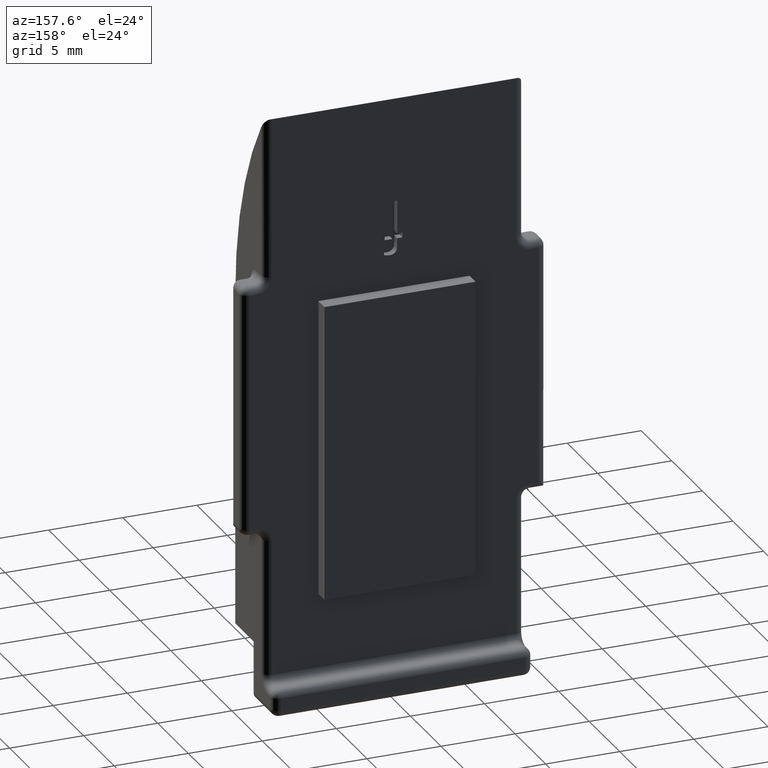
[diagram: clean part render]
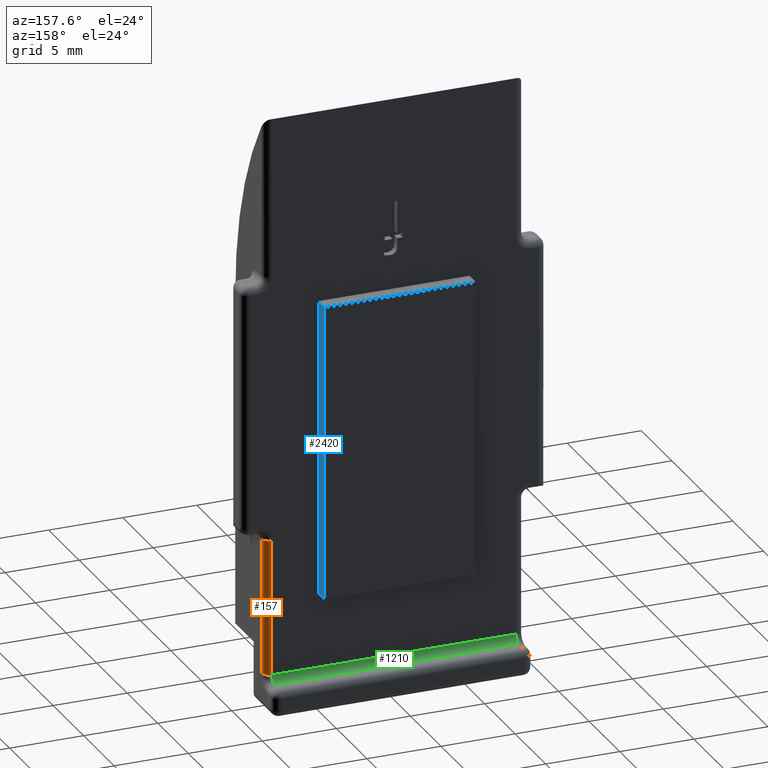
[diagram: same view with three faces highlighted in distinct colors, each labeled with its STEP entity id]
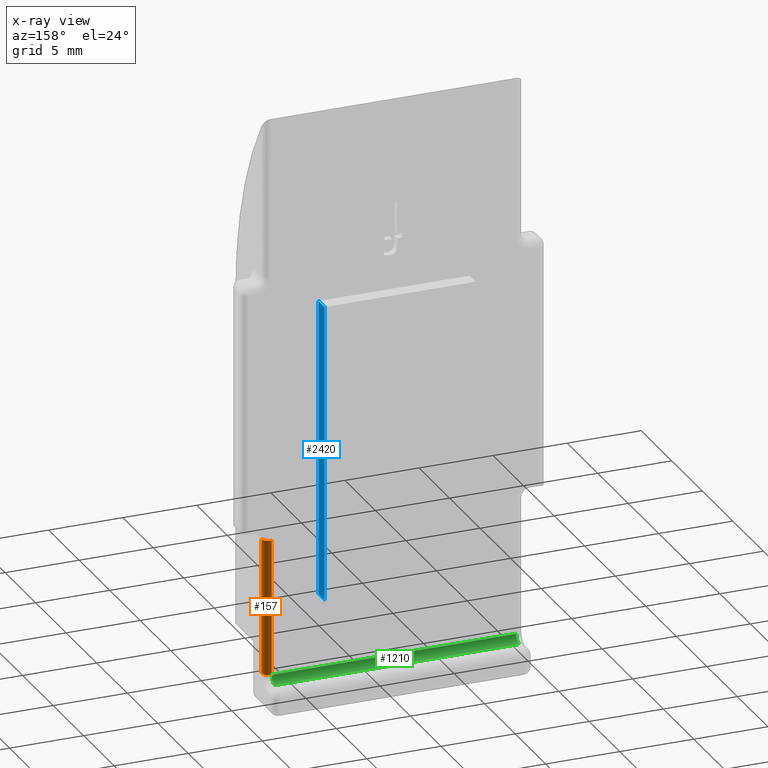
[diagram: x-ray of the same camera — body ghosted, the three highlighted faces saturated]
A machine part, auxiliary view with three faces highlighted in distinct colors.
The next image is the same camera in x-ray (body ghosted, the three faces saturated) — at least one of them is partly hidden behind the body in this view.
Their STEP definitions:

[orange] entity #157 — the highlighted cylindrical surface (edge-blend (fillet) strip) has radius 0.5 mm, axis along (0, -0, -1).
#157 = ADVANCED_FACE ( 'NONE', ( #2794 ), #2586, .T. ) ;
#438 = VERTEX_POINT ( 'NONE', #2970 ) ;
#469 = LINE ( 'NONE', #2614, #600 ) ;
#536 = EDGE_CURVE ( 'NONE', #438, #683, #603, .T. ) ;
#575 = EDGE_CURVE ( 'NONE', #926, #2252, #469, .T. ) ;
#600 = VECTOR ( 'NONE', #2616, 1000.000000000000000 ) ;
#603 = LINE ( 'NONE', #2684, #681 ) ;
#617 = CIRCLE ( 'NONE', #2575, 0.5000000000000004400 ) ;
#681 = VECTOR ( 'NONE', #2651, 1000.000000000000000 ) ;
#683 = VERTEX_POINT ( 'NONE', #2521 ) ;
#926 = VERTEX_POINT ( 'NONE', #2037 ) ;
#1314 = AXIS2_PLACEMENT_3D ( 'NONE', #2668, #2606, #2459 ) ;
#1689 = AXIS2_PLACEMENT_3D ( 'NONE', #1982, #1890, #1831 ) ;
#1759 = EDGE_LOOP ( 'NONE', ( #2603, #2636, #2779, #2827 ) ) ;
#1831 = DIRECTION ( 'NONE',  ( 0.0000000000000000000, 1.000000000000000000, -4.511634527898061500E-017 ) ) ;
#1890 = DIRECTION ( 'NONE',  ( 0.0000000000000000000, -4.511634527898065800E-017, -1.000000000000000000 ) ) ;
#1982 = CARTESIAN_POINT ( 'NONE',  ( 17.00000000000000000, 4.249999999999994700, 0.0000000000000000000 ) ) ;
#2037 = CARTESIAN_POINT ( 'NONE',  ( 17.50000000000000000, 4.249999999999994700, -1.650000000000019500 ) ) ;
#2174 = DIRECTION ( 'NONE',  ( 1.000000000000000000, 0.0000000000000000000, 0.0000000000000000000 ) ) ;
#2195 = DIRECTION ( 'NONE',  ( -0.0000000000000000000, -0.0000000000000000000, -1.000000000000000000 ) ) ;
#2202 = CARTESIAN_POINT ( 'NONE',  ( 17.50000000000000000, 4.249999999999994700, 7.499999999999975100 ) ) ;
#2205 = CARTESIAN_POINT ( 'NONE',  ( 17.00000000000000000, 4.249999999999994700, 7.499999999999975100 ) ) ;
#2252 = VERTEX_POINT ( 'NONE', #2202 ) ;
#2405 = CIRCLE ( 'NONE', #1314, 0.5000000000000004400 ) ;
#2459 = DIRECTION ( 'NONE',  ( -1.000000000000000000, 0.0000000000000000000, 0.0000000000000000000 ) ) ;
#2521 = CARTESIAN_POINT ( 'NONE',  ( 17.00000000000000000, 4.749999999999995600, -1.650000000000019500 ) ) ;
#2575 = AXIS2_PLACEMENT_3D ( 'NONE', #2205, #2195, #2174 ) ;
#2586 = CYLINDRICAL_SURFACE ( 'NONE', #1689, 0.5000000000000004400 ) ;
#2603 = ORIENTED_EDGE ( 'NONE', *, *, #2896, .T. ) ;
#2606 = DIRECTION ( 'NONE',  ( 0.0000000000000000000, 0.0000000000000000000, -1.000000000000000000 ) ) ;
#2614 = CARTESIAN_POINT ( 'NONE',  ( 17.50000000000000000, 4.249999999999994700, 7.999999999999976000 ) ) ;
#2616 = DIRECTION ( 'NONE',  ( 0.0000000000000000000, 4.511634527898065800E-017, 1.000000000000000000 ) ) ;
#2636 = ORIENTED_EDGE ( 'NONE', *, *, #575, .F. ) ;
#2651 = DIRECTION ( 'NONE',  ( -0.0000000000000000000, -4.511634527898065800E-017, -1.000000000000000000 ) ) ;
#2668 = CARTESIAN_POINT ( 'NONE',  ( 17.00000000000000000, 4.249999999999994700, -1.650000000000019500 ) ) ;
#2684 = CARTESIAN_POINT ( 'NONE',  ( 17.00000000000000000, 4.749999999999995600, -2.150000000000019900 ) ) ;
#2698 = EDGE_CURVE ( 'NONE', #683, #926, #2405, .T. ) ;
#2779 = ORIENTED_EDGE ( 'NONE', *, *, #2698, .F. ) ;
#2794 = FACE_OUTER_BOUND ( 'NONE', #1759, .T. ) ;
#2827 = ORIENTED_EDGE ( 'NONE', *, *, #536, .F. ) ;
#2896 = EDGE_CURVE ( 'NONE', #438, #2252, #617, .T. ) ;
#2970 = CARTESIAN_POINT ( 'NONE',  ( 17.00000000000000000, 4.749999999999995600, 7.499999999999975100 ) ) ;

[blue] entity #2420 — the highlighted planar face has unit normal (-1, 0, 0).
#248 = CARTESIAN_POINT ( 'NONE',  ( 0.0000000000000000000, 10.19999999999999900, 1.000000000000000000 ) ) ;
#259 = FACE_OUTER_BOUND ( 'NONE', #564, .T. ) ;
#362 = VERTEX_POINT ( 'NONE', #248 ) ;
#364 = DIRECTION ( 'NONE',  ( -0.0000000000000000000, -0.0000000000000000000, -1.000000000000000000 ) ) ;
#367 = CARTESIAN_POINT ( 'NONE',  ( 20.00000000000000000, 10.19999999999999900, 1.000000000000000000 ) ) ;
#456 = CARTESIAN_POINT ( 'NONE',  ( 0.0000000000000000000, 10.19999999999999900, 1.000000000000000000 ) ) ;
#564 = EDGE_LOOP ( 'NONE', ( #2386, #2813, #2944, #1120 ) ) ;
#571 = DIRECTION ( 'NONE',  ( -0.0000000000000000000, -0.0000000000000000000, -1.000000000000000000 ) ) ;
#640 = VERTEX_POINT ( 'NONE', #2570 ) ;
#819 = DIRECTION ( 'NONE',  ( -1.000000000000000000, 0.0000000000000000000, 0.0000000000000000000 ) ) ;
#857 = VERTEX_POINT ( 'NONE', #2227 ) ;
#867 = CARTESIAN_POINT ( 'NONE',  ( 20.00000000000000000, 10.19999999999999900, 1.000000000000000000 ) ) ;
#1006 = DIRECTION ( 'NONE',  ( 0.0000000000000000000, -0.0000000000000000000, -1.000000000000000000 ) ) ;
#1026 = DIRECTION ( 'NONE',  ( 0.0000000000000000000, -1.000000000000000000, 0.0000000000000000000 ) ) ;
#1120 = ORIENTED_EDGE ( 'NONE', *, *, #2004, .T. ) ;
#1158 = LINE ( 'NONE', #367, #1162 ) ;
#1162 = VECTOR ( 'NONE', #364, 1000.000000000000000 ) ;
#1274 = PLANE ( 'NONE',  #2751 ) ;
#1352 = CARTESIAN_POINT ( 'NONE',  ( 20.00000000000000000, 10.19999999999999900, 0.0000000000000000000 ) ) ;
#1356 = DIRECTION ( 'NONE',  ( -1.000000000000000000, 0.0000000000000000000, 0.0000000000000000000 ) ) ;
#1359 = VERTEX_POINT ( 'NONE', #1403 ) ;
#1378 = VECTOR ( 'NONE', #571, 1000.000000000000000 ) ;
#1401 = EDGE_CURVE ( 'NONE', #857, #1359, #2302, .T. ) ;
#1403 = CARTESIAN_POINT ( 'NONE',  ( 0.0000000000000000000, 10.19999999999999900, 0.0000000000000000000 ) ) ;
#1456 = LINE ( 'NONE', #456, #1378 ) ;
#1554 = LINE ( 'NONE', #867, #1744 ) ;
#1744 = VECTOR ( 'NONE', #819, 1000.000000000000000 ) ;
#1794 = CARTESIAN_POINT ( 'NONE',  ( 20.00000000000000000, 10.19999999999999900, 1.000000000000000000 ) ) ;
#1895 = EDGE_CURVE ( 'NONE', #362, #1359, #1456, .T. ) ;
#2004 = EDGE_CURVE ( 'NONE', #640, #857, #1158, .T. ) ;
#2227 = CARTESIAN_POINT ( 'NONE',  ( 20.00000000000000000, 10.19999999999999900, 0.0000000000000000000 ) ) ;
#2298 = VECTOR ( 'NONE', #1356, 1000.000000000000000 ) ;
#2302 = LINE ( 'NONE', #1352, #2298 ) ;
#2386 = ORIENTED_EDGE ( 'NONE', *, *, #1401, .T. ) ;
#2420 = ADVANCED_FACE ( 'NONE', ( #259 ), #1274, .F. ) ;
#2570 = CARTESIAN_POINT ( 'NONE',  ( 20.00000000000000000, 10.19999999999999900, 1.000000000000000000 ) ) ;
#2751 = AXIS2_PLACEMENT_3D ( 'NONE', #1794, #1026, #1006 ) ;
#2765 = EDGE_CURVE ( 'NONE', #640, #362, #1554, .T. ) ;
#2813 = ORIENTED_EDGE ( 'NONE', *, *, #1895, .F. ) ;
#2944 = ORIENTED_EDGE ( 'NONE', *, *, #2765, .F. ) ;

[green] entity #1210 — the highlighted cylindrical surface (edge-blend (fillet) strip) has radius 0.5 mm, axis along (1, 0, 0).
#94 = AXIS2_PLACEMENT_3D ( 'NONE', #366, #118, #95 ) ;
#95 = DIRECTION ( 'NONE',  ( 0.0000000000000000000, 0.0000000000000000000, -1.000000000000000000 ) ) ;
#107 = CIRCLE ( 'NONE', #94, 0.5000000000000000000 ) ;
#118 = DIRECTION ( 'NONE',  ( 1.000000000000000000, -0.0000000000000000000, 0.0000000000000000000 ) ) ;
#177 = DIRECTION ( 'NONE',  ( -1.000000000000000000, 0.0000000000000000000, 0.0000000000000000000 ) ) ;
#292 = DIRECTION ( 'NONE',  ( 1.000000000000000000, -0.0000000000000000000, -0.0000000000000000000 ) ) ;
#330 = CARTESIAN_POINT ( 'NONE',  ( 17.50000000000000000, 5.249999999999995600, -2.150000000000019900 ) ) ;
#341 = DIRECTION ( 'NONE',  ( 0.0000000000000000000, 0.0000000000000000000, -1.000000000000000000 ) ) ;
#342 = DIRECTION ( 'NONE',  ( 1.000000000000000000, -0.0000000000000000000, 0.0000000000000000000 ) ) ;
#346 = CARTESIAN_POINT ( 'NONE',  ( 0.5000000000000004400, 5.249999999999995600, -1.650000000000019500 ) ) ;
#366 = CARTESIAN_POINT ( 'NONE',  ( 17.00000000000000000, 5.249999999999995600, -1.650000000000019500 ) ) ;
#392 = AXIS2_PLACEMENT_3D ( 'NONE', #346, #342, #341 ) ;
#504 = AXIS2_PLACEMENT_3D ( 'NONE', #1567, #1597, #1571 ) ;
#653 = ORIENTED_EDGE ( 'NONE', *, *, #2497, .T. ) ;
#683 = VERTEX_POINT ( 'NONE', #2521 ) ;
#758 = ORIENTED_EDGE ( 'NONE', *, *, #2049, .F. ) ;
#807 = ORIENTED_EDGE ( 'NONE', *, *, #2011, .F. ) ;
#987 = CARTESIAN_POINT ( 'NONE',  ( 17.00000000000000000, 5.249999999999995600, -2.150000000000019900 ) ) ;
#1028 = VECTOR ( 'NONE', #292, 1000.000000000000000 ) ;
#1076 = LINE ( 'NONE', #330, #1028 ) ;
#1192 = CIRCLE ( 'NONE', #392, 0.5000000000000000000 ) ;
#1210 = ADVANCED_FACE ( 'NONE', ( #2537 ), #2531, .F. ) ;
#1362 = VERTEX_POINT ( 'NONE', #1407 ) ;
#1407 = CARTESIAN_POINT ( 'NONE',  ( 0.5000000000000004400, 5.249999999999995600, -2.150000000000019900 ) ) ;
#1474 = CARTESIAN_POINT ( 'NONE',  ( 0.0000000000000000000, 4.749999999999995600, -1.650000000000019500 ) ) ;
#1567 = CARTESIAN_POINT ( 'NONE',  ( 17.50000000000000000, 5.249999999999995600, -1.650000000000019500 ) ) ;
#1571 = DIRECTION ( 'NONE',  ( 0.0000000000000000000, 0.0000000000000000000, -1.000000000000000000 ) ) ;
#1597 = DIRECTION ( 'NONE',  ( 1.000000000000000000, 0.0000000000000000000, 0.0000000000000000000 ) ) ;
#1631 = VERTEX_POINT ( 'NONE', #987 ) ;
#2011 = EDGE_CURVE ( 'NONE', #2844, #1362, #1192, .T. ) ;
#2049 = EDGE_CURVE ( 'NONE', #1362, #1631, #1076, .T. ) ;
#2074 = EDGE_LOOP ( 'NONE', ( #653, #758, #807, #2743 ) ) ;
#2407 = VECTOR ( 'NONE', #177, 1000.000000000000000 ) ;
#2497 = EDGE_CURVE ( 'NONE', #683, #1631, #107, .T. ) ;
#2521 = CARTESIAN_POINT ( 'NONE',  ( 17.00000000000000000, 4.749999999999995600, -1.650000000000019500 ) ) ;
#2531 = CYLINDRICAL_SURFACE ( 'NONE', #504, 0.5000000000000000000 ) ;
#2537 = FACE_OUTER_BOUND ( 'NONE', #2074, .T. ) ;
#2567 = LINE ( 'NONE', #1474, #2407 ) ;
#2656 = EDGE_CURVE ( 'NONE', #683, #2844, #2567, .T. ) ;
#2689 = CARTESIAN_POINT ( 'NONE',  ( 0.5000000000000004400, 4.749999999999995600, -1.650000000000019500 ) ) ;
#2743 = ORIENTED_EDGE ( 'NONE', *, *, #2656, .F. ) ;
#2844 = VERTEX_POINT ( 'NONE', #2689 ) ;